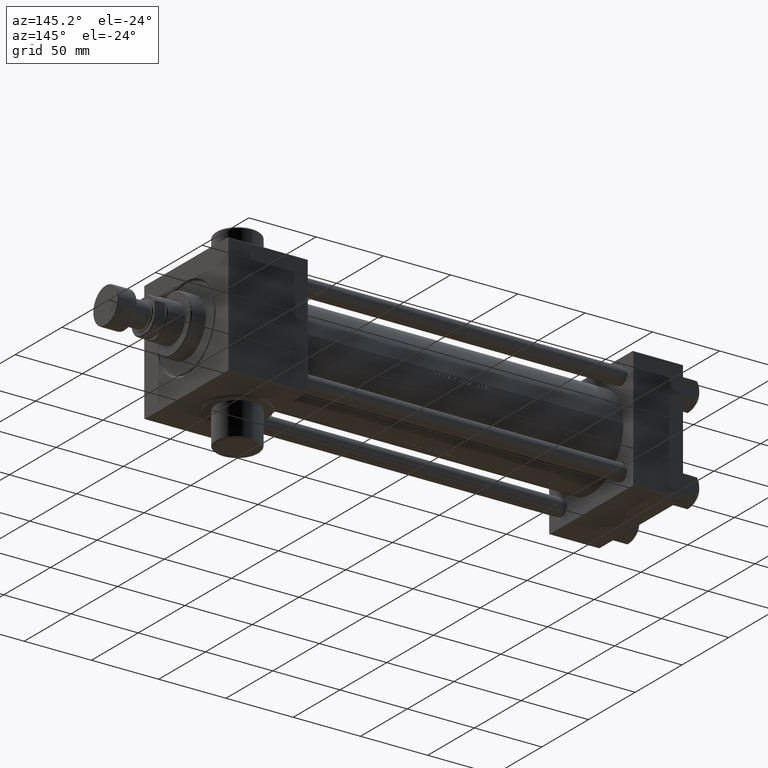
[diagram: clean part render]
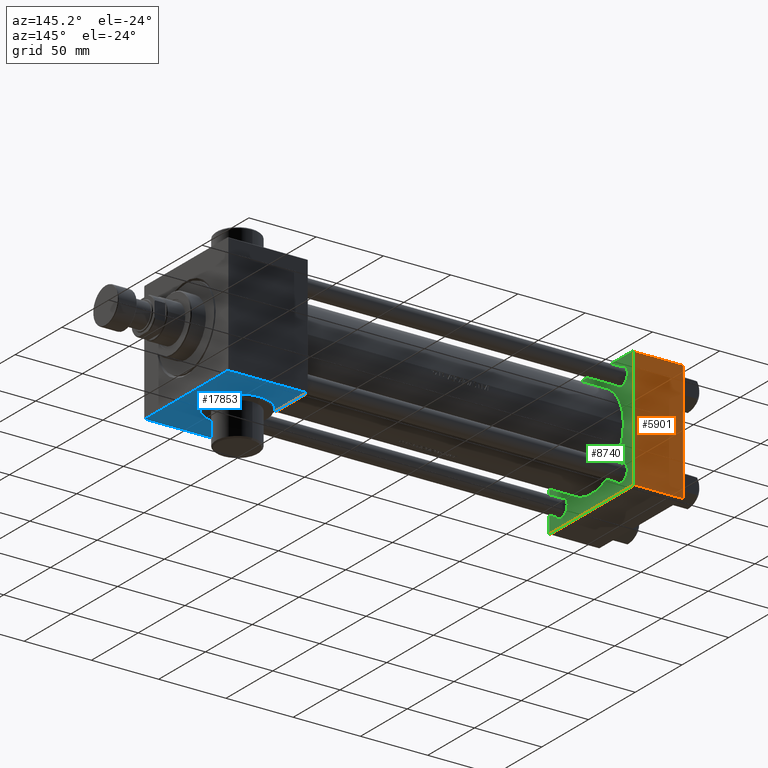
[diagram: same view with three faces highlighted in distinct colors, each labeled with its STEP entity id]
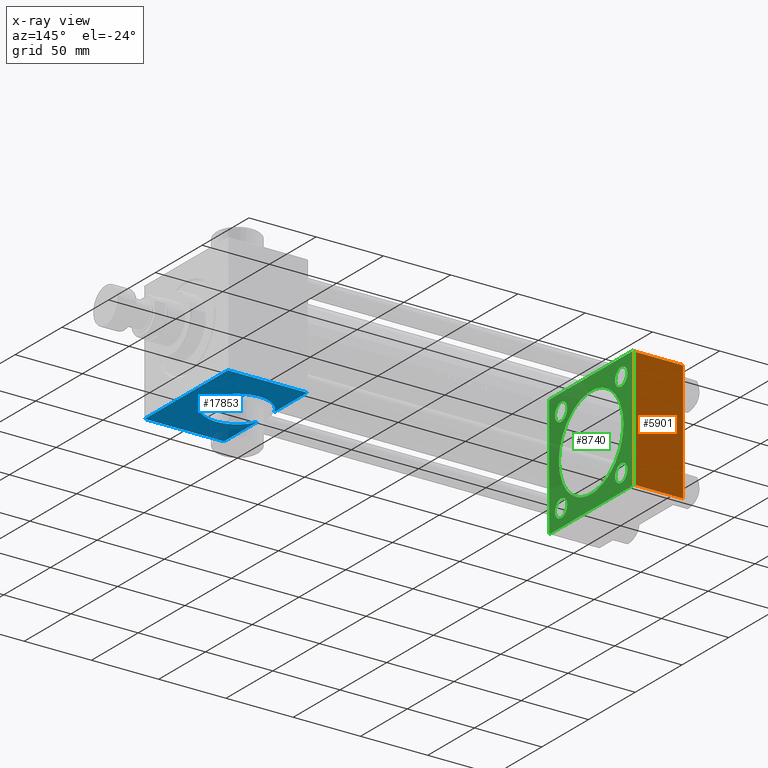
[diagram: x-ray of the same camera — body ghosted, the three highlighted faces saturated]
A machine part, auxiliary view with three faces highlighted in distinct colors.
The next image is the same camera in x-ray (body ghosted, the three faces saturated) — at least one of them is partly hidden behind the body in this view.
Their STEP definitions:

[orange] entity #5901 — the highlighted planar face has unit normal (0, -1, -0).
#103 = CARTESIAN_POINT ( 'NONE',  ( 0.000000000000000000, 44.49999999999998579, 45.00000000000001421 ) ) ;
#671 = LINE ( 'NONE', #26134, #28222 ) ;
#719 = PLANE ( 'NONE',  #34257 ) ;
#4526 = FACE_OUTER_BOUND ( 'NONE', #5071, .T. ) ;
#4556 = CARTESIAN_POINT ( 'NONE',  ( 0.000000000000000000, -44.49999999999995737, 45.00000000000000000 ) ) ;
#5071 = EDGE_LOOP ( 'NONE', ( #6083, #38884, #12739, #36269 ) ) ;
#5901 = ADVANCED_FACE ( 'NONE', ( #4526 ), #719, .F. ) ;
#6017 = EDGE_CURVE ( 'NONE', #40254, #37311, #40931, .T. ) ;
#6083 = ORIENTED_EDGE ( 'NONE', *, *, #6017, .T. ) ;
#7189 = EDGE_CURVE ( 'NONE', #40999, #36952, #671, .T. ) ;
#12453 = CARTESIAN_POINT ( 'NONE',  ( 37.00000000000000000, -44.49999999999995737, 45.00000000000000000 ) ) ;
#12739 = ORIENTED_EDGE ( 'NONE', *, *, #7189, .F. ) ;
#14766 = LINE ( 'NONE', #33791, #47011 ) ;
#15183 = CARTESIAN_POINT ( 'NONE',  ( 0.000000000000000000, 44.49999999999998579, 45.00000000000001421 ) ) ;
#17966 = LINE ( 'NONE', #103, #32996 ) ;
#18330 = DIRECTION ( 'NONE',  ( 0.000000000000000000, 1.541976423090495633E-16, -1.000000000000000000 ) ) ;
#21662 = CARTESIAN_POINT ( 'NONE',  ( 37.00000000000000000, 44.99999999999998579, 45.00000000000001421 ) ) ;
#23651 = VECTOR ( 'NONE', #38068, 1000.000000000000000 ) ;
#26134 = CARTESIAN_POINT ( 'NONE',  ( 37.00000000000000000, 44.99999999999998579, 45.00000000000001421 ) ) ;
#28070 = EDGE_CURVE ( 'NONE', #40999, #40254, #17966, .T. ) ;
#28222 = VECTOR ( 'NONE', #40651, 1000.000000000000000 ) ;
#32996 = VECTOR ( 'NONE', #42947, 1000.000000000000000 ) ;
#33791 = CARTESIAN_POINT ( 'NONE',  ( 37.00000000000000000, -44.49999999999998579, 45.00000000000000000 ) ) ;
#34257 = AXIS2_PLACEMENT_3D ( 'NONE', #21662, #18330, #37144 ) ;
#34364 = CARTESIAN_POINT ( 'NONE',  ( 37.00000000000000000, 44.49999999999998579, 45.00000000000001421 ) ) ;
#36269 = ORIENTED_EDGE ( 'NONE', *, *, #28070, .T. ) ;
#36952 = VERTEX_POINT ( 'NONE', #12453 ) ;
#37144 = DIRECTION ( 'NONE',  ( 0.000000000000000000, 1.000000000000000000, 1.541976423090495633E-16 ) ) ;
#37311 = VERTEX_POINT ( 'NONE', #4556 ) ;
#38068 = DIRECTION ( 'NONE',  ( 0.000000000000000000, -1.000000000000000000, -1.541976423090495387E-16 ) ) ;
#38884 = ORIENTED_EDGE ( 'NONE', *, *, #42396, .T. ) ;
#40254 = VERTEX_POINT ( 'NONE', #15183 ) ;
#40651 = DIRECTION ( 'NONE',  ( 0.000000000000000000, -1.000000000000000000, -1.541976423090495387E-16 ) ) ;
#40931 = LINE ( 'NONE', #41160, #23651 ) ;
#40999 = VERTEX_POINT ( 'NONE', #34364 ) ;
#41160 = CARTESIAN_POINT ( 'NONE',  ( 0.000000000000000000, 44.99999999999998579, 45.00000000000001421 ) ) ;
#42396 = EDGE_CURVE ( 'NONE', #37311, #36952, #14766, .T. ) ;
#42947 = DIRECTION ( 'NONE',  ( -1.000000000000000000, 0.000000000000000000, 0.000000000000000000 ) ) ;
#44499 = DIRECTION ( 'NONE',  ( 1.000000000000000000, 0.000000000000000000, 0.000000000000000000 ) ) ;
#47011 = VECTOR ( 'NONE', #44499, 1000.000000000000000 ) ;

[blue] entity #17853 — the highlighted planar face has unit normal (0, 0, -1).
#723 = ORIENTED_EDGE ( 'NONE', *, *, #37119, .T. ) ;
#1068 = CARTESIAN_POINT ( 'NONE',  ( 278.9999999999999432, 44.50000000000000000, -9.380831519646831040 ) ) ;
#1140 = VERTEX_POINT ( 'NONE', #42197 ) ;
#1167 = DIRECTION ( 'NONE',  ( 0.000000000000000000, 0.000000000000000000, -1.000000000000000000 ) ) ;
#3040 = FACE_OUTER_BOUND ( 'NONE', #5424, .T. ) ;
#3897 = DIRECTION ( 'NONE',  ( 0.000000000000000000, 0.000000000000000000, 1.000000000000000000 ) ) ;
#4151 = LINE ( 'NONE', #37707, #36298 ) ;
#4521 = CARTESIAN_POINT ( 'NONE',  ( 300.0000000000000000, 44.50000000000000000, 23.00000000000001421 ) ) ;
#5275 = DIRECTION ( 'NONE',  ( -1.000000000000000000, 0.000000000000000000, 0.000000000000000000 ) ) ;
#5424 = EDGE_LOOP ( 'NONE', ( #16090, #15389, #26780, #14242, #32136, #723, #26591, #15086 ) ) ;
#8275 = DIRECTION ( 'NONE',  ( 0.000000000000000000, -0.000000000000000000, 1.000000000000000000 ) ) ;
#9429 = EDGE_CURVE ( 'NONE', #9636, #1140, #23357, .T. ) ;
#9636 = VERTEX_POINT ( 'NONE', #45709 ) ;
#10028 = VERTEX_POINT ( 'NONE', #1068 ) ;
#11296 = DIRECTION ( 'NONE',  ( 0.000000000000000000, 0.000000000000000000, -1.000000000000000000 ) ) ;
#11890 = CIRCLE ( 'NONE', #35431, 23.00000000000001421 ) ;
#11946 = CARTESIAN_POINT ( 'NONE',  ( 337.9999999999999432, 44.50000000000000000, -44.50000000000000000 ) ) ;
#12077 = DIRECTION ( 'NONE',  ( -0.000000000000000000, 1.000000000000000000, 0.000000000000000000 ) ) ;
#14078 = CIRCLE ( 'NONE', #23193, 23.00000000000001421 ) ;
#14174 = VERTEX_POINT ( 'NONE', #14861 ) ;
#14242 = ORIENTED_EDGE ( 'NONE', *, *, #45508, .T. ) ;
#14861 = CARTESIAN_POINT ( 'NONE',  ( 300.0000000000000000, 44.50000000000000000, -23.00000000000001421 ) ) ;
#15086 = ORIENTED_EDGE ( 'NONE', *, *, #9429, .T. ) ;
#15389 = ORIENTED_EDGE ( 'NONE', *, *, #33049, .T. ) ;
#15661 = CARTESIAN_POINT ( 'NONE',  ( 278.9999999999999432, 44.50000000000000000, 45.00000000000000000 ) ) ;
#16090 = ORIENTED_EDGE ( 'NONE', *, *, #24614, .F. ) ;
#17711 = DIRECTION ( 'NONE',  ( 0.000000000000000000, -1.000000000000000000, -0.000000000000000000 ) ) ;
#17853 = ADVANCED_FACE ( 'NONE', ( #3040 ), #23023, .T. ) ;
#18541 = LINE ( 'NONE', #19248, #35222 ) ;
#19230 = CARTESIAN_POINT ( 'NONE',  ( 300.0000000000000000, 44.50000000000000000, -8.673617379884097102E-17 ) ) ;
#19248 = CARTESIAN_POINT ( 'NONE',  ( 278.9999999999999432, 44.50000000000000000, 45.00000000000000000 ) ) ;
#20270 = AXIS2_PLACEMENT_3D ( 'NONE', #34459, #46718, #45396 ) ;
#20799 = DIRECTION ( 'NONE',  ( 2.413528314402512709E-15, 0.000000000000000000, 1.000000000000000000 ) ) ;
#23023 = PLANE ( 'NONE',  #38814 ) ;
#23193 = AXIS2_PLACEMENT_3D ( 'NONE', #19230, #46259, #20799 ) ;
#23357 = LINE ( 'NONE', #11946, #26777 ) ;
#24614 = EDGE_CURVE ( 'NONE', #10028, #1140, #18541, .T. ) ;
#25646 = DIRECTION ( 'NONE',  ( 0.000000000000000000, 0.000000000000000000, -1.000000000000000000 ) ) ;
#26591 = ORIENTED_EDGE ( 'NONE', *, *, #40891, .T. ) ;
#26736 = VERTEX_POINT ( 'NONE', #41811 ) ;
#26777 = VECTOR ( 'NONE', #5275, 1000.000000000000000 ) ;
#26780 = ORIENTED_EDGE ( 'NONE', *, *, #47032, .T. ) ;
#27424 = CARTESIAN_POINT ( 'NONE',  ( 337.9999999999999432, 44.50000000000000000, 44.50000000000000000 ) ) ;
#28603 = CIRCLE ( 'NONE', #20270, 23.00000000000001421 ) ;
#29106 = VERTEX_POINT ( 'NONE', #34667 ) ;
#29698 = LINE ( 'NONE', #15661, #45193 ) ;
#32136 = ORIENTED_EDGE ( 'NONE', *, *, #32442, .F. ) ;
#32442 = EDGE_CURVE ( 'NONE', #26736, #29106, #29698, .T. ) ;
#33049 = EDGE_CURVE ( 'NONE', #10028, #14174, #14078, .T. ) ;
#33972 = CARTESIAN_POINT ( 'NONE',  ( 337.9999999999999432, 44.50000000000000000, 45.00000000000000000 ) ) ;
#34036 = VERTEX_POINT ( 'NONE', #43212 ) ;
#34459 = CARTESIAN_POINT ( 'NONE',  ( 300.0000000000000000, 44.50000000000000000, -8.673617379884097102E-17 ) ) ;
#34667 = CARTESIAN_POINT ( 'NONE',  ( 278.9999999999999432, 44.50000000000000000, 9.380831519646873673 ) ) ;
#35222 = VECTOR ( 'NONE', #1167, 1000.000000000000000 ) ;
#35431 = AXIS2_PLACEMENT_3D ( 'NONE', #39359, #17711, #3897 ) ;
#36298 = VECTOR ( 'NONE', #11296, 1000.000000000000000 ) ;
#37119 = EDGE_CURVE ( 'NONE', #26736, #34036, #45515, .T. ) ;
#37707 = CARTESIAN_POINT ( 'NONE',  ( 337.9999999999999432, 44.50000000000000000, 45.00000000000000000 ) ) ;
#38814 = AXIS2_PLACEMENT_3D ( 'NONE', #33972, #12077, #8275 ) ;
#39359 = CARTESIAN_POINT ( 'NONE',  ( 300.0000000000000000, 44.50000000000000000, -8.673617379884097102E-17 ) ) ;
#40891 = EDGE_CURVE ( 'NONE', #34036, #9636, #4151, .T. ) ;
#41811 = CARTESIAN_POINT ( 'NONE',  ( 278.9999999999999432, 44.50000000000000000, 44.50000000000000000 ) ) ;
#41940 = DIRECTION ( 'NONE',  ( 1.000000000000000000, 0.000000000000000000, 0.000000000000000000 ) ) ;
#42197 = CARTESIAN_POINT ( 'NONE',  ( 278.9999999999999432, 44.50000000000000000, -44.49999999999997158 ) ) ;
#42489 = VERTEX_POINT ( 'NONE', #4521 ) ;
#43038 = VECTOR ( 'NONE', #41940, 1000.000000000000000 ) ;
#43212 = CARTESIAN_POINT ( 'NONE',  ( 337.9999999999999432, 44.50000000000000000, 44.50000000000000000 ) ) ;
#45193 = VECTOR ( 'NONE', #25646, 1000.000000000000000 ) ;
#45396 = DIRECTION ( 'NONE',  ( 0.000000000000000000, 0.000000000000000000, 1.000000000000000000 ) ) ;
#45508 = EDGE_CURVE ( 'NONE', #42489, #29106, #11890, .T. ) ;
#45515 = LINE ( 'NONE', #27424, #43038 ) ;
#45709 = CARTESIAN_POINT ( 'NONE',  ( 337.9999999999999432, 44.50000000000000000, -44.49999999999997158 ) ) ;
#46259 = DIRECTION ( 'NONE',  ( 0.000000000000000000, -1.000000000000000000, -0.000000000000000000 ) ) ;
#46718 = DIRECTION ( 'NONE',  ( 0.000000000000000000, -1.000000000000000000, -0.000000000000000000 ) ) ;
#47032 = EDGE_CURVE ( 'NONE', #14174, #42489, #28603, .T. ) ;

[green] entity #8740 — the highlighted planar face has unit normal (-1, 0, -0).
#671 = LINE ( 'NONE', #26134, #28222 ) ;
#1141 = LINE ( 'NONE', #40650, #6142 ) ;
#1520 = CARTESIAN_POINT ( 'NONE',  ( 37.00000000000000711, 7.555845051047534515E-16, -34.49999999999999289 ) ) ;
#1660 = AXIS2_PLACEMENT_3D ( 'NONE', #28962, #43476, #16114 ) ;
#2315 = CIRCLE ( 'NONE', #31966, 6.500000000000117240 ) ;
#2329 = FACE_BOUND ( 'NONE', #16675, .T. ) ;
#2533 = AXIS2_PLACEMENT_3D ( 'NONE', #34387, #5594, #19855 ) ;
#2837 = ORIENTED_EDGE ( 'NONE', *, *, #25134, .T. ) ;
#2975 = EDGE_CURVE ( 'NONE', #36952, #3748, #3290, .T. ) ;
#3120 = ORIENTED_EDGE ( 'NONE', *, *, #7189, .T. ) ;
#3290 = LINE ( 'NONE', #46830, #32638 ) ;
#3717 = EDGE_CURVE ( 'NONE', #22515, #6873, #9982, .T. ) ;
#3748 = VERTEX_POINT ( 'NONE', #7586 ) ;
#3851 = ORIENTED_EDGE ( 'NONE', *, *, #18898, .T. ) ;
#3940 = CARTESIAN_POINT ( 'NONE',  ( 37.00000000000000000, 32.14999999999999147, -32.15000000000000568 ) ) ;
#3943 = VERTEX_POINT ( 'NONE', #10612 ) ;
#4077 = CARTESIAN_POINT ( 'NONE',  ( 37.00000000000000000, -32.14999999999997726, -32.15000000000001279 ) ) ;
#4336 = CIRCLE ( 'NONE', #30926, 34.49999999999999289 ) ;
#4777 = CARTESIAN_POINT ( 'NONE',  ( 37.00000000000000000, -44.49999999999995737, -45.00000000000000000 ) ) ;
#5049 = AXIS2_PLACEMENT_3D ( 'NONE', #12911, #38145, #35514 ) ;
#5119 = EDGE_CURVE ( 'NONE', #3943, #7531, #2315, .T. ) ;
#5131 = ORIENTED_EDGE ( 'NONE', *, *, #11633, .T. ) ;
#5594 = DIRECTION ( 'NONE',  ( -1.000000000000000000, 0.000000000000000000, -0.000000000000000000 ) ) ;
#6142 = VECTOR ( 'NONE', #8052, 1000.000000000000114 ) ;
#6489 = EDGE_CURVE ( 'NONE', #32612, #31955, #38833, .T. ) ;
#6873 = VERTEX_POINT ( 'NONE', #4777 ) ;
#7189 = EDGE_CURVE ( 'NONE', #40999, #36952, #671, .T. ) ;
#7311 = CIRCLE ( 'NONE', #5049, 6.500000000000117240 ) ;
#7531 = VERTEX_POINT ( 'NONE', #31282 ) ;
#7586 = CARTESIAN_POINT ( 'NONE',  ( 37.00000000000000000, -45.00000000000000711, 44.49999999999997158 ) ) ;
#8008 = DIRECTION ( 'NONE',  ( -1.000000000000000000, 0.000000000000000000, -0.000000000000000000 ) ) ;
#8052 = DIRECTION ( 'NONE',  ( -0.000000000000000000, 0.7071067811865474617, 0.7071067811865474617 ) ) ;
#8088 = DIRECTION ( 'NONE',  ( 0.000000000000000000, 0.000000000000000000, 1.000000000000000000 ) ) ;
#8385 = VERTEX_POINT ( 'NONE', #1520 ) ;
#8544 = AXIS2_PLACEMENT_3D ( 'NONE', #38277, #27319, #9712 ) ;
#8600 = CARTESIAN_POINT ( 'NONE',  ( 37.00000000000000000, 44.49999999999998579, 45.00000000000001421 ) ) ;
#8692 = CARTESIAN_POINT ( 'NONE',  ( 37.00000000000000711, -3.469446951953614189E-15, 0.000000000000000000 ) ) ;
#8694 = VERTEX_POINT ( 'NONE', #30663 ) ;
#8740 = ADVANCED_FACE ( 'NONE', ( #16388, #30894, #45408, #45876, #2329, #12818 ), #23987, .F. ) ;
#9079 = EDGE_LOOP ( 'NONE', ( #40809, #3851, #10992, #5131, #3120, #32320, #32697, #40792 ) ) ;
#9413 = DIRECTION ( 'NONE',  ( 0.000000000000000000, 0.000000000000000000, 1.000000000000000000 ) ) ;
#9538 = EDGE_LOOP ( 'NONE', ( #30951, #20637 ) ) ;
#9712 = DIRECTION ( 'NONE',  ( -0.000000000000000000, 0.000000000000000000, 1.000000000000000000 ) ) ;
#9982 = LINE ( 'NONE', #39009, #30412 ) ;
#10264 = CARTESIAN_POINT ( 'NONE',  ( 37.00000000000000000, -45.00000000000000000, -44.49999999999995737 ) ) ;
#10503 = EDGE_CURVE ( 'NONE', #29096, #19280, #23752, .T. ) ;
#10612 = CARTESIAN_POINT ( 'NONE',  ( 37.00000000000000000, 32.14999999999999147, 25.64999999999988844 ) ) ;
#10970 = EDGE_CURVE ( 'NONE', #8694, #24551, #37866, .T. ) ;
#10992 = ORIENTED_EDGE ( 'NONE', *, *, #10970, .F. ) ;
#11051 = AXIS2_PLACEMENT_3D ( 'NONE', #32987, #8008, #40608 ) ;
#11147 = EDGE_LOOP ( 'NONE', ( #38944, #33522 ) ) ;
#11310 = ORIENTED_EDGE ( 'NONE', *, *, #6489, .T. ) ;
#11633 = EDGE_CURVE ( 'NONE', #8694, #40999, #44061, .T. ) ;
#12453 = CARTESIAN_POINT ( 'NONE',  ( 37.00000000000000000, -44.49999999999995737, 45.00000000000000000 ) ) ;
#12485 = VERTEX_POINT ( 'NONE', #36533 ) ;
#12818 = FACE_OUTER_BOUND ( 'NONE', #9079, .T. ) ;
#12853 = LINE ( 'NONE', #27354, #17779 ) ;
#12867 = DIRECTION ( 'NONE',  ( 0.000000000000000000, 0.000000000000000000, -1.000000000000000000 ) ) ;
#12911 = CARTESIAN_POINT ( 'NONE',  ( 37.00000000000000000, 32.14999999999999147, 32.15000000000000568 ) ) ;
#13157 = CARTESIAN_POINT ( 'NONE',  ( 37.00000000000000000, -32.14999999999997726, -38.65000000000004832 ) ) ;
#13415 = EDGE_CURVE ( 'NONE', #3748, #22110, #41251, .T. ) ;
#13734 = VERTEX_POINT ( 'NONE', #14031 ) ;
#14031 = CARTESIAN_POINT ( 'NONE',  ( 37.00000000000000000, -32.14999999999997726, -25.64999999999997726 ) ) ;
#16114 = DIRECTION ( 'NONE',  ( 0.000000000000000000, 0.000000000000000000, 1.000000000000000000 ) ) ;
#16388 = FACE_BOUND ( 'NONE', #11147, .T. ) ;
#16675 = EDGE_LOOP ( 'NONE', ( #27219, #26260 ) ) ;
#17369 = CARTESIAN_POINT ( 'NONE',  ( 37.00000000000000000, 44.99999999999998579, -44.49999999999995737 ) ) ;
#17779 = VECTOR ( 'NONE', #34750, 1000.000000000000114 ) ;
#18335 = EDGE_CURVE ( 'NONE', #8385, #12485, #31207, .T. ) ;
#18454 = VECTOR ( 'NONE', #45006, 1000.000000000000114 ) ;
#18553 = DIRECTION ( 'NONE',  ( 1.000000000000000000, -0.000000000000000000, 0.000000000000000000 ) ) ;
#18831 = DIRECTION ( 'NONE',  ( 0.000000000000000000, 0.000000000000000000, 1.000000000000000000 ) ) ;
#18898 = EDGE_CURVE ( 'NONE', #22515, #24551, #1141, .T. ) ;
#19200 = AXIS2_PLACEMENT_3D ( 'NONE', #24219, #38730, #43221 ) ;
#19280 = VERTEX_POINT ( 'NONE', #32949 ) ;
#19855 = DIRECTION ( 'NONE',  ( 0.000000000000000000, 0.000000000000000000, 1.000000000000000000 ) ) ;
#20162 = EDGE_CURVE ( 'NONE', #19280, #29096, #32011, .T. ) ;
#20402 = EDGE_LOOP ( 'NONE', ( #36945, #46139 ) ) ;
#20637 = ORIENTED_EDGE ( 'NONE', *, *, #36223, .T. ) ;
#21791 = DIRECTION ( 'NONE',  ( 0.000000000000000000, 0.000000000000000000, 1.000000000000000000 ) ) ;
#22110 = VERTEX_POINT ( 'NONE', #10264 ) ;
#22118 = AXIS2_PLACEMENT_3D ( 'NONE', #3940, #36080, #21791 ) ;
#22515 = VERTEX_POINT ( 'NONE', #24726 ) ;
#23209 = DIRECTION ( 'NONE',  ( 1.000000000000000000, -0.000000000000000000, 0.000000000000000000 ) ) ;
#23404 = CARTESIAN_POINT ( 'NONE',  ( 37.00000000000000000, -45.00000000000000711, 45.00000000000000000 ) ) ;
#23752 = CIRCLE ( 'NONE', #19200, 6.500000000000033751 ) ;
#23987 = PLANE ( 'NONE',  #8544 ) ;
#24219 = CARTESIAN_POINT ( 'NONE',  ( 37.00000000000000000, -32.14999999999997726, 32.15000000000001279 ) ) ;
#24551 = VERTEX_POINT ( 'NONE', #17369 ) ;
#24726 = CARTESIAN_POINT ( 'NONE',  ( 37.00000000000000000, 44.49999999999998579, -44.99999999999998579 ) ) ;
#25134 = EDGE_CURVE ( 'NONE', #31955, #32612, #39014, .T. ) ;
#25425 = DIRECTION ( 'NONE',  ( 0.000000000000000000, -1.000000000000000000, -1.541976423090495633E-16 ) ) ;
#26134 = CARTESIAN_POINT ( 'NONE',  ( 37.00000000000000000, 44.99999999999998579, 45.00000000000001421 ) ) ;
#26260 = ORIENTED_EDGE ( 'NONE', *, *, #18335, .F. ) ;
#26505 = EDGE_CURVE ( 'NONE', #22110, #6873, #12853, .T. ) ;
#26997 = VERTEX_POINT ( 'NONE', #13157 ) ;
#27219 = ORIENTED_EDGE ( 'NONE', *, *, #38248, .F. ) ;
#27319 = DIRECTION ( 'NONE',  ( -1.000000000000000000, 0.000000000000000000, -0.000000000000000000 ) ) ;
#27354 = CARTESIAN_POINT ( 'NONE',  ( 37.00000000000000000, -44.49999999999998579, -45.00000000000000000 ) ) ;
#27987 = CARTESIAN_POINT ( 'NONE',  ( 37.00000000000000000, 32.14999999999999147, -25.64999999999988844 ) ) ;
#28222 = VECTOR ( 'NONE', #40651, 1000.000000000000000 ) ;
#28327 = CARTESIAN_POINT ( 'NONE',  ( 37.00000000000000000, 32.14999999999999147, -38.65000000000011937 ) ) ;
#28743 = DIRECTION ( 'NONE',  ( -0.000000000000000000, -0.7071067811865425767, -0.7071067811865524577 ) ) ;
#28962 = CARTESIAN_POINT ( 'NONE',  ( 37.00000000000000000, -32.14999999999997726, 32.15000000000001279 ) ) ;
#29096 = VERTEX_POINT ( 'NONE', #38002 ) ;
#29179 = VECTOR ( 'NONE', #31006, 1000.000000000000000 ) ;
#30412 = VECTOR ( 'NONE', #25425, 1000.000000000000000 ) ;
#30663 = CARTESIAN_POINT ( 'NONE',  ( 37.00000000000000000, 44.99999999999998579, 44.50000000000001421 ) ) ;
#30894 = FACE_BOUND ( 'NONE', #40771, .T. ) ;
#30926 = AXIS2_PLACEMENT_3D ( 'NONE', #44247, #18553, #8088 ) ;
#30951 = ORIENTED_EDGE ( 'NONE', *, *, #5119, .T. ) ;
#31006 = DIRECTION ( 'NONE',  ( 0.000000000000000000, 7.709882115452476934E-17, -1.000000000000000000 ) ) ;
#31207 = CIRCLE ( 'NONE', #36563, 34.49999999999999289 ) ;
#31282 = CARTESIAN_POINT ( 'NONE',  ( 37.00000000000000000, 32.14999999999999147, 38.65000000000011937 ) ) ;
#31955 = VERTEX_POINT ( 'NONE', #28327 ) ;
#31966 = AXIS2_PLACEMENT_3D ( 'NONE', #44872, #34169, #9413 ) ;
#32011 = CIRCLE ( 'NONE', #1660, 6.500000000000033751 ) ;
#32320 = ORIENTED_EDGE ( 'NONE', *, *, #2975, .T. ) ;
#32612 = VERTEX_POINT ( 'NONE', #27987 ) ;
#32638 = VECTOR ( 'NONE', #28743, 1000.000000000000114 ) ;
#32697 = ORIENTED_EDGE ( 'NONE', *, *, #13415, .T. ) ;
#32949 = CARTESIAN_POINT ( 'NONE',  ( 37.00000000000000000, -32.14999999999997726, 38.65000000000004832 ) ) ;
#32987 = CARTESIAN_POINT ( 'NONE',  ( 37.00000000000000000, -32.14999999999997726, -32.15000000000001279 ) ) ;
#33522 = ORIENTED_EDGE ( 'NONE', *, *, #34110, .T. ) ;
#33556 = EDGE_CURVE ( 'NONE', #26997, #13734, #44456, .T. ) ;
#34110 = EDGE_CURVE ( 'NONE', #13734, #26997, #42971, .T. ) ;
#34169 = DIRECTION ( 'NONE',  ( -1.000000000000000000, 0.000000000000000000, -0.000000000000000000 ) ) ;
#34364 = CARTESIAN_POINT ( 'NONE',  ( 37.00000000000000000, 44.49999999999998579, 45.00000000000001421 ) ) ;
#34387 = CARTESIAN_POINT ( 'NONE',  ( 37.00000000000000000, 32.14999999999999147, -32.15000000000000568 ) ) ;
#34750 = DIRECTION ( 'NONE',  ( 0.000000000000000000, 0.7071067811865474617, -0.7071067811865474617 ) ) ;
#34764 = CARTESIAN_POINT ( 'NONE',  ( 37.00000000000000000, 44.99999999999998579, 45.00000000000001421 ) ) ;
#35514 = DIRECTION ( 'NONE',  ( 0.000000000000000000, 0.000000000000000000, 1.000000000000000000 ) ) ;
#35948 = VECTOR ( 'NONE', #12867, 1000.000000000000000 ) ;
#36080 = DIRECTION ( 'NONE',  ( -1.000000000000000000, 0.000000000000000000, -0.000000000000000000 ) ) ;
#36223 = EDGE_CURVE ( 'NONE', #7531, #3943, #7311, .T. ) ;
#36533 = CARTESIAN_POINT ( 'NONE',  ( 37.00000000000000711, -3.469446951953614189E-15, 34.49999999999999289 ) ) ;
#36563 = AXIS2_PLACEMENT_3D ( 'NONE', #8692, #23209, #44854 ) ;
#36945 = ORIENTED_EDGE ( 'NONE', *, *, #10503, .T. ) ;
#36952 = VERTEX_POINT ( 'NONE', #12453 ) ;
#37866 = LINE ( 'NONE', #34764, #35948 ) ;
#38002 = CARTESIAN_POINT ( 'NONE',  ( 37.00000000000000000, -32.14999999999997726, 25.64999999999997726 ) ) ;
#38145 = DIRECTION ( 'NONE',  ( -1.000000000000000000, 0.000000000000000000, -0.000000000000000000 ) ) ;
#38248 = EDGE_CURVE ( 'NONE', #12485, #8385, #4336, .T. ) ;
#38277 = CARTESIAN_POINT ( 'NONE',  ( 37.00000000000000000, 0.000000000000000000, 0.000000000000000000 ) ) ;
#38730 = DIRECTION ( 'NONE',  ( -1.000000000000000000, 0.000000000000000000, -0.000000000000000000 ) ) ;
#38833 = CIRCLE ( 'NONE', #22118, 6.500000000000117240 ) ;
#38944 = ORIENTED_EDGE ( 'NONE', *, *, #33556, .T. ) ;
#39009 = CARTESIAN_POINT ( 'NONE',  ( 37.00000000000000000, 44.99999999999998579, -44.99999999999998579 ) ) ;
#39014 = CIRCLE ( 'NONE', #2533, 6.500000000000117240 ) ;
#40608 = DIRECTION ( 'NONE',  ( 0.000000000000000000, 0.000000000000000000, 1.000000000000000000 ) ) ;
#40650 = CARTESIAN_POINT ( 'NONE',  ( 37.00000000000000000, 44.99999999999998579, -44.49999999999998579 ) ) ;
#40651 = DIRECTION ( 'NONE',  ( 0.000000000000000000, -1.000000000000000000, -1.541976423090495387E-16 ) ) ;
#40652 = AXIS2_PLACEMENT_3D ( 'NONE', #4077, #40721, #18831 ) ;
#40721 = DIRECTION ( 'NONE',  ( -1.000000000000000000, 0.000000000000000000, -0.000000000000000000 ) ) ;
#40771 = EDGE_LOOP ( 'NONE', ( #2837, #11310 ) ) ;
#40792 = ORIENTED_EDGE ( 'NONE', *, *, #26505, .T. ) ;
#40809 = ORIENTED_EDGE ( 'NONE', *, *, #3717, .F. ) ;
#40999 = VERTEX_POINT ( 'NONE', #34364 ) ;
#41251 = LINE ( 'NONE', #23404, #29179 ) ;
#42971 = CIRCLE ( 'NONE', #11051, 6.500000000000033751 ) ;
#43221 = DIRECTION ( 'NONE',  ( 0.000000000000000000, 0.000000000000000000, 1.000000000000000000 ) ) ;
#43476 = DIRECTION ( 'NONE',  ( -1.000000000000000000, 0.000000000000000000, -0.000000000000000000 ) ) ;
#44061 = LINE ( 'NONE', #8600, #18454 ) ;
#44247 = CARTESIAN_POINT ( 'NONE',  ( 37.00000000000000711, -3.469446951953614189E-15, 0.000000000000000000 ) ) ;
#44456 = CIRCLE ( 'NONE', #40652, 6.500000000000033751 ) ;
#44854 = DIRECTION ( 'NONE',  ( 0.000000000000000000, 0.000000000000000000, 1.000000000000000000 ) ) ;
#44872 = CARTESIAN_POINT ( 'NONE',  ( 37.00000000000000000, 32.14999999999999147, 32.15000000000000568 ) ) ;
#45006 = DIRECTION ( 'NONE',  ( 0.000000000000000000, -0.7071067811865474617, 0.7071067811865474617 ) ) ;
#45408 = FACE_BOUND ( 'NONE', #20402, .T. ) ;
#45876 = FACE_BOUND ( 'NONE', #9538, .T. ) ;
#46139 = ORIENTED_EDGE ( 'NONE', *, *, #20162, .T. ) ;
#46830 = CARTESIAN_POINT ( 'NONE',  ( 37.00000000000000000, -45.00000000000000711, 44.49999999999997158 ) ) ;